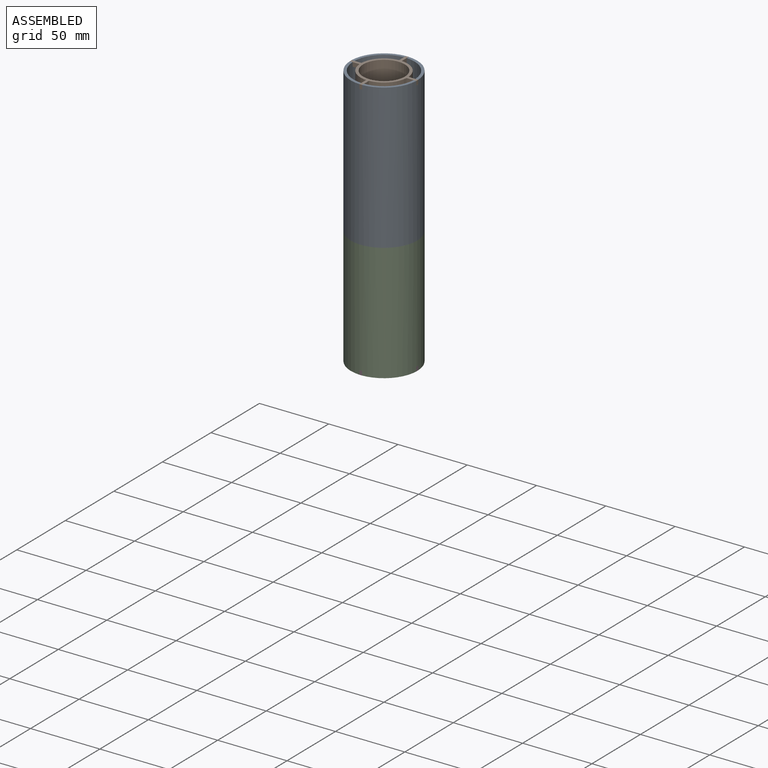
[diagram: assembled view]
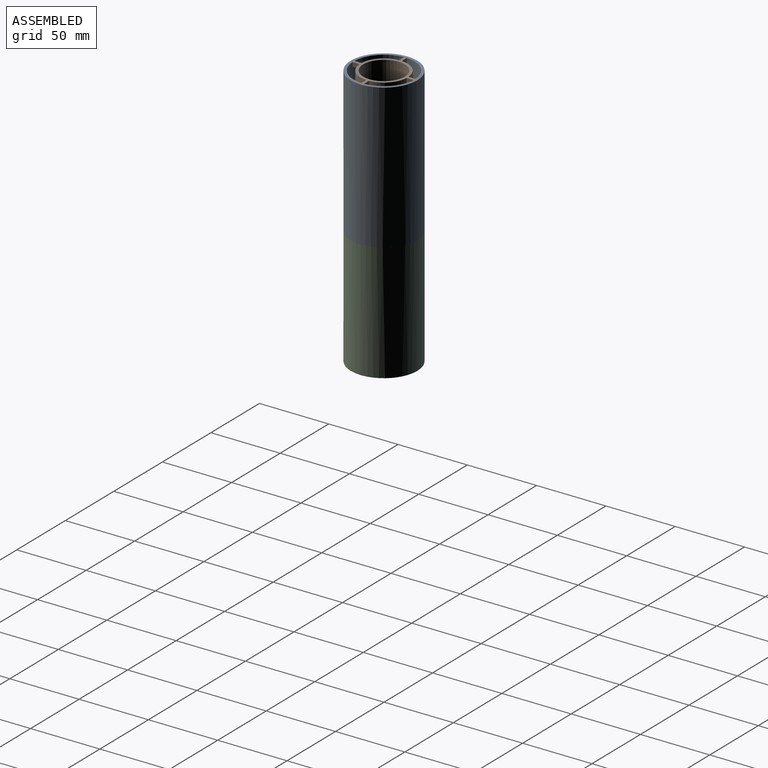
[diagram: assembled view, second angle]
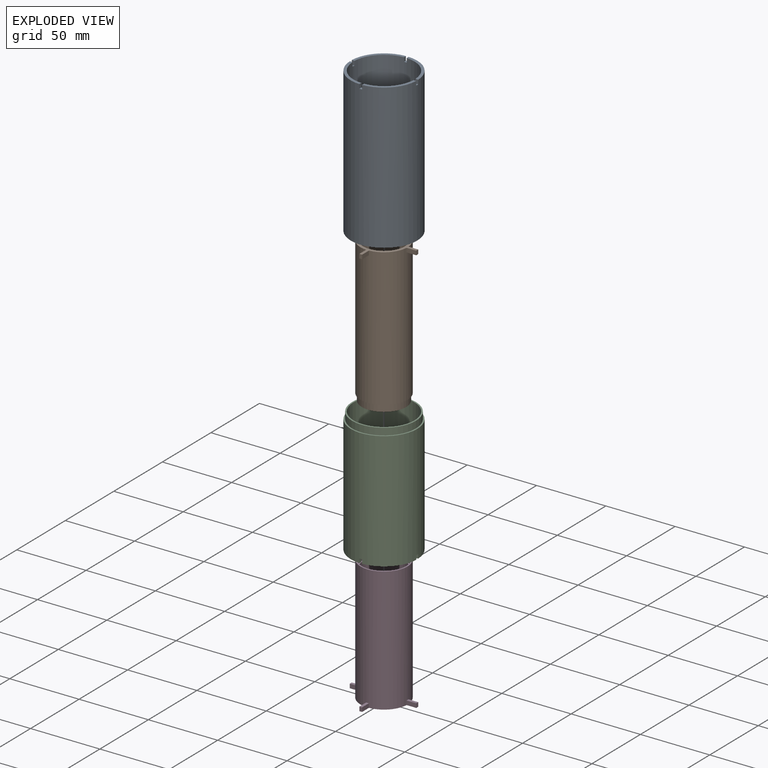
[diagram: exploded view]
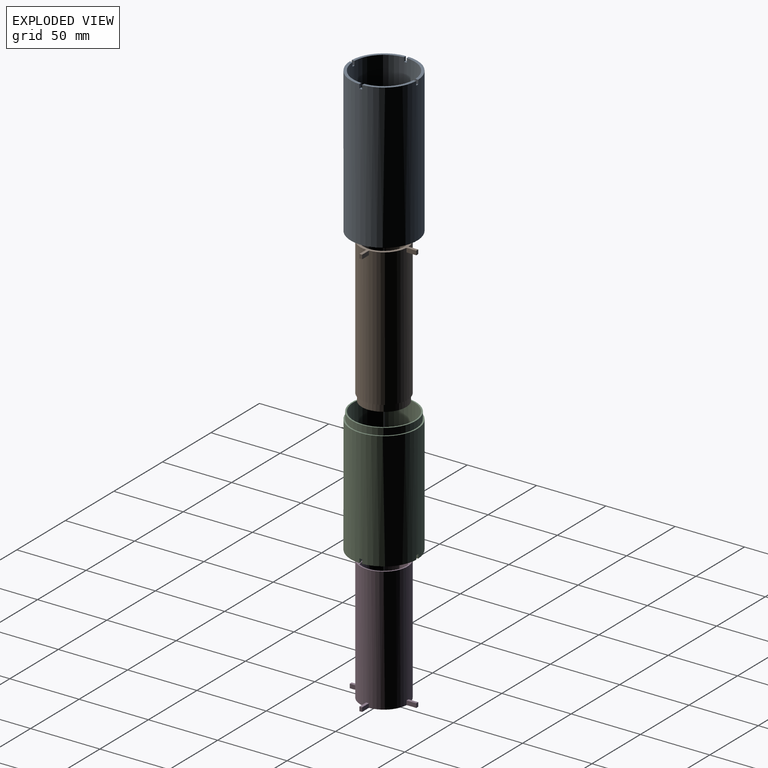
[diagram: exploded view, second angle]
ASSEMBLY  parts=4 mates=3
PART A: 21 faces, bbox 48x48x104.5 mm
  f0: plane 22.98x22.98mm, normal (0,0,1), area 68.3mm2, adj f3,f7,f16,f19
  f1: plane 22.98x22.98mm, normal (0,0,1), area 68.3mm2, adj f3,f7,f12,f15
  f2: plane 22.98x22.98mm, normal (0,0,1), area 68.3mm2, adj f3,f7,f9,f13
  f3: cylinder r=22mm len=99.5mm, axis (0,0,-1), area 13729.9mm2, adj f0,f1,f2,f5,f8,f9,f10,f11
  f4: cylinder r=23mm len=46mm, axis (0,0,-1), area 722.6mm2, adj f6,f8
  f5: plane 22.98x22.98mm, normal (0,0,1), area 68.3mm2, adj f3,f7,f10,f18
  f6: plane 48x48mm, normal (0,0,-1), area 147.7mm2, adj f4,f7
  f7: cylinder r=24mm len=104.5mm, axis (0,0,-1), area 15734.2mm2, adj f0,f1,f2,f5,f6,f9,f10,f11
  f8: plane 46x46mm, normal (0,0,-1), area 141.4mm2, adj f3,f4
  f9: plane 3x2mm, normal (-1,0,0), area 6mm2, adj f2,f3,f7,f11
  f10: plane 3x2mm, normal (1,0,0), area 6mm2, adj f3,f5,f7,f11
  f11: plane 2.02x2mm, normal (0,0,1), area 4mm2, adj f3,f7,f9,f10
  f12: plane 3x2mm, normal (0,-1,0), area 6mm2, adj f1,f3,f7,f14
  f13: plane 3x2mm, normal (0,1,0), area 6mm2, adj f2,f3,f7,f14
  f14: plane 2.02x2mm, normal (0,0,1), area 4mm2, adj f3,f7,f12,f13
  f15: plane 3x2mm, normal (-1,0,0), area 6mm2, adj f1,f3,f7,f17
  f16: plane 3x2mm, normal (1,0,0), area 6mm2, adj f0,f3,f7,f17
  f17: plane 2.02x2mm, normal (0,0,1), area 4mm2, adj f3,f7,f15,f16
  f18: plane 3x2mm, normal (0,1,0), area 6mm2, adj f3,f5,f7,f20
  f19: plane 3x2mm, normal (0,-1,0), area 6mm2, adj f0,f3,f7,f20
  f20: plane 2.02x2mm, normal (0,0,1), area 4mm2, adj f3,f7,f18,f19
PART B: 22 faces, bbox 48x48x104.5 mm
  f0: cylinder r=16mm len=32mm, axis (0,0,1), area 502.7mm2, adj f2,f3
  f1: cylinder r=15mm len=104.5mm, axis (0,0,1), area 9848.9mm2, adj f2,f8
  f2: plane 32x32mm, normal (0,0,1), area 97.4mm2, adj f0,f1
  f3: plane 34x34mm, normal (0,0,1), area 103.7mm2, adj f0,f4
  f4: cylinder r=17mm len=99.5mm, axis (0,0,1), area 10604mm2, adj f3,f5,f6,f7,f8,f9,f11,f12
  f5: plane 7.01x2mm, normal (0,0,1), area 14mm2, adj f4,f12,f13,f14
  f6: plane 7.01x2mm, normal (0,0,1), area 14mm2, adj f4,f9,f10,f11
  f7: plane 7.01x2mm, normal (0,0,1), area 14mm2, adj f4,f18,f20,f21
  f8: plane 47.96x47.96mm, normal (0,0,-1), area 257mm2, adj f1,f4,f9,f10,f11,f12,f13,f14
  f9: plane 7.01x3mm, normal (1,0,0), area 21mm2, adj f4,f6,f8,f10
  f10: plane 3x2mm, normal (0,-1,0), area 6mm2, adj f6,f8,f9,f11
  f11: plane 7.01x3mm, normal (-1,0,0), area 21mm2, adj f4,f6,f8,f10
  f12: plane 7.01x3mm, normal (0,-1,0), area 21mm2, adj f4,f5,f8,f13
  f13: plane 3x2mm, normal (-1,0,0), area 6mm2, adj f5,f8,f12,f14
  f14: plane 7.01x3mm, normal (0,1,0), area 21mm2, adj f4,f5,f8,f13
  f15: plane 7.01x3mm, normal (-1,0,0), area 21mm2, adj f4,f8,f16,f19
  f16: plane 3x2mm, normal (0,1,0), area 6mm2, adj f8,f15,f17,f19
  f17: plane 7.01x3mm, normal (1,0,0), area 21mm2, adj f4,f8,f16,f19
  f18: plane 7.01x3mm, normal (0,1,0), area 21mm2, adj f4,f7,f8,f20
  f19: plane 7.01x2mm, normal (0,0,1), area 14mm2, adj f4,f15,f16,f17
  f20: plane 3x2mm, normal (1,0,0), area 6mm2, adj f7,f8,f18,f21
  f21: plane 7.01x3mm, normal (0,-1,0), area 21mm2, adj f4,f7,f8,f20
PART C: 21 faces, bbox 48x48x90 mm
  f0: cylinder r=22mm len=90mm, axis (0,0,-1), area 12416.7mm2, adj f1,f2,f3,f6,f8,f9,f10,f11
  f1: plane 22.98x22.98mm, normal (0,0,-1), area 68.3mm2, adj f0,f4,f15,f18
  f2: plane 22.98x22.98mm, normal (0,0,-1), area 68.3mm2, adj f0,f4,f12,f16
  f3: plane 22.98x22.98mm, normal (0,0,-1), area 68.3mm2, adj f0,f4,f9,f13
  f4: cylinder r=24mm len=85mm, axis (0,0,-1), area 12793.7mm2, adj f1,f2,f3,f5,f6,f9,f10,f11
  f5: plane 48x48mm, normal (0,0,1), area 147.7mm2, adj f4,f7
  f6: plane 22.98x22.98mm, normal (0,0,-1), area 68.3mm2, adj f0,f4,f10,f19
  f7: cylinder r=23mm len=46mm, axis (0,0,-1), area 722.6mm2, adj f5,f8
  f8: plane 46x46mm, normal (0,0,1), area 141.4mm2, adj f0,f7
  f9: plane 3x2mm, normal (-1,0,0), area 6mm2, adj f0,f3,f4,f11
  f10: plane 3x2mm, normal (1,0,0), area 6mm2, adj f0,f4,f6,f11
  f11: plane 2.02x2mm, normal (0,0,-1), area 4mm2, adj f0,f4,f9,f10
  f12: plane 3x2mm, normal (0,1,0), area 6mm2, adj f0,f2,f4,f14
  f13: plane 3x2mm, normal (0,-1,0), area 6mm2, adj f0,f3,f4,f14
  f14: plane 2.02x2mm, normal (0,0,-1), area 4mm2, adj f0,f4,f12,f13
  f15: plane 3x2mm, normal (1,0,0), area 6mm2, adj f0,f1,f4,f17
  f16: plane 3x2mm, normal (-1,0,0), area 6mm2, adj f0,f2,f4,f17
  f17: plane 2.02x2mm, normal (0,0,-1), area 4mm2, adj f0,f4,f15,f16
  f18: plane 3x2mm, normal (0,1,0), area 6mm2, adj f0,f1,f4,f20
  f19: plane 3x2mm, normal (0,-1,0), area 6mm2, adj f0,f4,f6,f20
  f20: plane 2.02x2mm, normal (0,0,-1), area 4mm2, adj f0,f4,f18,f19
PART D: 22 faces, bbox 48x48x90 mm
  f0: plane 7.01x2mm, normal (0,0,-1), area 14mm2, adj f4,f5,f6,f13
  f1: plane 7.01x2mm, normal (0,0,-1), area 14mm2, adj f7,f8,f9,f13
  f2: plane 7.01x2mm, normal (0,0,-1), area 14mm2, adj f10,f11,f12,f13
  f3: plane 47.96x47.96mm, normal (0,0,1), area 257mm2, adj f4,f5,f6,f7,f8,f9,f10,f11
  f4: plane 7.01x3mm, normal (1,0,0), area 21mm2, adj f0,f3,f5,f13
  f5: plane 3x2mm, normal (0,1,0), area 6mm2, adj f0,f3,f4,f6
  f6: plane 7.01x3mm, normal (-1,0,0), area 21mm2, adj f0,f3,f5,f13
  f7: plane 7.01x3mm, normal (0,1,0), area 21mm2, adj f1,f3,f8,f13
  f8: plane 3x2mm, normal (-1,0,0), area 6mm2, adj f1,f3,f7,f9
  f9: plane 7.01x3mm, normal (0,-1,0), area 21mm2, adj f1,f3,f8,f13
  f10: plane 7.01x3mm, normal (-1,0,0), area 21mm2, adj f2,f3,f11,f13
  f11: plane 3x2mm, normal (0,-1,0), area 6mm2, adj f2,f3,f10,f12
  f12: plane 7.01x3mm, normal (1,0,0), area 21mm2, adj f2,f3,f11,f13
  f13: cylinder r=17mm len=90mm, axis (0,0,-1), area 9589.3mm2, adj f0,f1,f2,f3,f4,f6,f7,f9
  f14: plane 7.01x3mm, normal (0,-1,0), area 21mm2, adj f3,f13,f15,f16
  f15: plane 7.01x2mm, normal (0,0,-1), area 14mm2, adj f13,f14,f16,f17
  f16: plane 3x2mm, normal (1,0,0), area 6mm2, adj f3,f14,f15,f17
  f17: plane 7.01x3mm, normal (0,1,0), area 21mm2, adj f3,f13,f15,f16
  f18: cylinder r=15mm len=85mm, axis (0,0,-1), area 8011.1mm2, adj f3,f21
  f19: plane 34x34mm, normal (0,0,-1), area 103.7mm2, adj f13,f20
  f20: cylinder r=16mm len=32mm, axis (0,0,-1), area 502.7mm2, adj f19,f21
  f21: plane 32x32mm, normal (0,0,-1), area 97.4mm2, adj f18,f20
PLACE A t=(0,0,196.5)mm
PLACE B rot(axis=(1,0,0),180deg) t=(0,0,0)mm
PLACE C t=(0,0,-7)mm
PLACE D rot(axis=(1,0,0),180deg) t=(0,0,0)mm
MATE fastened C.f0 <-> D.f13  axis (0,0,-1) through (0,0,0)mm
MATE fastened A.f3 <-> C.f0  axis (0,0,-1) through (0,0,85)mm
MATE fastened B.f0 <-> A.f3  axis (0,0,1) through (0,0,189.5)mm
